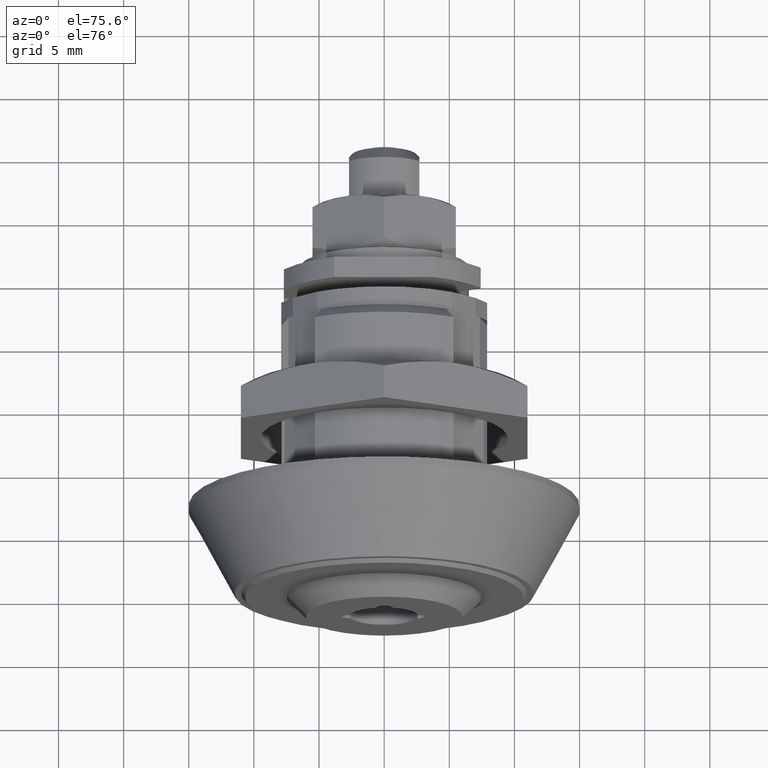
[diagram: clean part render]
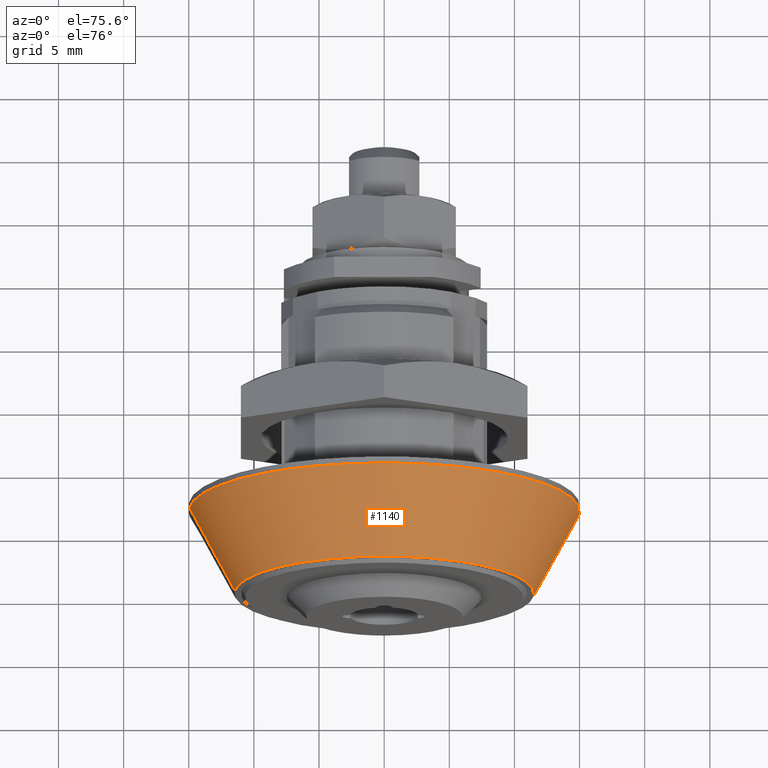
[diagram: same view with one face highlighted and labeled with its STEP entity id]
A machine part, auxiliary view. The second image highlights one B-rep face of the part: STEP entity #1140.
In plain terms, the highlighted face is a freeform B-spline surface patch.
Its self-contained STEP definition (entity closure, byte-faithful):
#929=CARTESIAN_POINT('',(8.300000000000100,-14.972022057790671,-0.915726761118138));
#930=VERTEX_POINT('',#929);
#936=CARTESIAN_POINT('',(8.300000000001246,-14.953760005997051,-1.176886435924669));
#937=VERTEX_POINT('',#936);
#938=CARTESIAN_POINT('',(8.300000000001246,-14.953760005997058,-1.176886435924669));
#939=CARTESIAN_POINT('',(8.300000000000004,-14.964030590679132,-1.046386284186825));
#940=CARTESIAN_POINT('',(8.300000000000100,-14.972022057790664,-0.915726761118138));
#948=(BOUNDED_CURVE()B_SPLINE_CURVE(2,(#938,#939,#940),.UNSPECIFIED.,.F.,.U.)B_SPLINE_CURVE_WITH_KNOTS((3,3),(0.736331300632608,0.739332977591658),.UNSPECIFIED.)CURVE()GEOMETRIC_REPRESENTATION_ITEM()RATIONAL_B_SPLINE_CURVE((0.969723356171484,0.972855491581995,0.976072074570510))REPRESENTATION_ITEM(''));
#949=EDGE_CURVE('',#937,#930,#948,.T.);
#989=CARTESIAN_POINT('',(8.300000000001244,14.953760005997051,1.176886435924667));
#990=VERTEX_POINT('',#989);
#1006=CARTESIAN_POINT('',(8.300000000000001,0.0,15.0));
#1007=VERTEX_POINT('',#1006);
#1008=CARTESIAN_POINT('',(8.300000000000001,0.0,15.0));
#1009=CARTESIAN_POINT('',(8.300000000000003,13.865857374860207,15.000000000000007));
#1010=CARTESIAN_POINT('',(8.300000000001244,14.953760005997056,1.176886435924667));
#1018=(BOUNDED_CURVE()B_SPLINE_CURVE(2,(#1008,#1009,#1010),.UNSPECIFIED.,.F.,.U.)B_SPLINE_CURVE_WITH_KNOTS((3,3),(0.0,0.236331300632608),.UNSPECIFIED.)CURVE()GEOMETRIC_REPRESENTATION_ITEM()RATIONAL_B_SPLINE_CURVE((1.0,0.723120658605383,0.969723356171484))REPRESENTATION_ITEM(''));
#1019=EDGE_CURVE('',#1007,#990,#1018,.T.);
#1021=CARTESIAN_POINT('',(8.300000000000100,-14.972022057790664,-0.915726761118138));
#1022=CARTESIAN_POINT('',(8.300000000000001,-14.999999999999998,-0.458290781659214));
#1023=CARTESIAN_POINT('',(8.300000000000001,-15.0,0.0));
#1024=CARTESIAN_POINT('',(8.300000000000001,-14.999999999999996,14.999999999999996));
#1025=CARTESIAN_POINT('',(8.300000000000001,0.0,15.0));
#1033=(BOUNDED_CURVE()B_SPLINE_CURVE(2,(#1021,#1022,#1023,#1024,#1025),.UNSPECIFIED.,.F.,.U.)B_SPLINE_CURVE_WITH_KNOTS((3,2,3),(0.739332977591658,0.750000000000000,1.0),.UNSPECIFIED.)CURVE()GEOMETRIC_REPRESENTATION_ITEM()RATIONAL_B_SPLINE_CURVE((0.976072074570510,0.987502805886662,1.0,0.707106781186547,1.0))REPRESENTATION_ITEM(''));
#1034=EDGE_CURVE('',#930,#1007,#1033,.T.);
#1073=CARTESIAN_POINT('',(1.637500000000000,11.377319071229319,0.895414429994037));
#1074=CARTESIAN_POINT('',(1.637500000000000,10.481904641235282,12.272733501223358));
#1075=CARTESIAN_POINT('',(1.637500000000000,-0.895414429994037,11.377319071229319));
#1076=CARTESIAN_POINT('',(1.637500000000000,-12.272733501223358,10.481904641235282));
#1077=CARTESIAN_POINT('',(1.637500000000000,-11.377319071229319,-0.895414429994037));
#1078=CARTESIAN_POINT('',(8.466562500000002,15.043171029366130,1.183923236065776));
#1079=CARTESIAN_POINT('',(8.466562500000002,13.859247793300352,16.227094265431905));
#1080=CARTESIAN_POINT('',(8.466562500000002,-1.183923236065776,15.043171029366130));
#1081=CARTESIAN_POINT('',(8.466562500000002,-16.227094265431905,13.859247793300352));
#1082=CARTESIAN_POINT('',(8.466562500000002,-15.043171029366130,-1.183923236065776));
#1090=(BOUNDED_SURFACE()B_SPLINE_SURFACE(2,1,((#1073,#1078),(#1074,#1079),(#1075,#1080),(#1076,#1081),(#1077,#1082)),.UNSPECIFIED.,.F.,.F.,.U.)B_SPLINE_SURFACE_WITH_KNOTS((3,2,3),(2,2),(0.0,25.001412857887079,50.002825715774172),(0.0,7.756146113828871),.UNSPECIFIED.)GEOMETRIC_REPRESENTATION_ITEM()RATIONAL_B_SPLINE_SURFACE(((1.0,1.0),(0.707106781186548,0.707106781186548),(1.0,1.0),(0.707106781186548,0.707106781186548),(1.0,1.0)))REPRESENTATION_ITEM('')SURFACE());
#1091=CARTESIAN_POINT('',(1.800000000000000,0.0,11.500000000000000));
#1092=VERTEX_POINT('',#1091);
#1093=CARTESIAN_POINT('',(1.799995854685223,11.464547399393579,0.902275783184057));
#1094=VERTEX_POINT('',#1093);
#1095=CARTESIAN_POINT('',(1.800000000000000,0.0,11.500000000000000));
#1096=CARTESIAN_POINT('',(1.799997927342612,10.630492929466369,11.499999912436346));
#1097=CARTESIAN_POINT('',(1.799995854685224,11.464547399393576,0.902275783184057));
#1105=(BOUNDED_CURVE()B_SPLINE_CURVE(2,(#1095,#1096,#1097),.UNSPECIFIED.,.F.,.U.)B_SPLINE_CURVE_WITH_KNOTS((3,3),(0.0,0.236331355098390),.UNSPECIFIED.)CURVE()GEOMETRIC_REPRESENTATION_ITEM()RATIONAL_B_SPLINE_CURVE((1.0,0.723120594794750,0.969723469837444))REPRESENTATION_ITEM(''));
#1106=EDGE_CURVE('',#1092,#1094,#1105,.T.);
#1107=ORIENTED_EDGE('',*,*,#1106,.F.);
#1108=CARTESIAN_POINT('',(1.799995854685223,-11.464547399393579,-0.902275783184057));
#1109=VERTEX_POINT('',#1108);
#1110=CARTESIAN_POINT('',(1.799995854685222,-11.464547399393574,-0.902275783184057));
#1111=CARTESIAN_POINT('',(1.799995929962617,-11.499997815196634,-0.451834228909769));
#1112=CARTESIAN_POINT('',(1.799996011397218,-11.499997858910870,0.000000168506682));
#1113=CARTESIAN_POINT('',(1.799998084054607,-11.499998971517075,11.500000080943030));
#1114=CARTESIAN_POINT('',(1.800000000000000,0.0,11.500000000000000));
#1122=(BOUNDED_CURVE()B_SPLINE_CURVE(2,(#1110,#1111,#1112,#1113,#1114),.UNSPECIFIED.,.F.,.U.)B_SPLINE_CURVE_WITH_KNOTS((3,2,3),(0.736331355098390,0.750000000000000,1.0),.UNSPECIFIED.)CURVE()GEOMETRIC_REPRESENTATION_ITEM()RATIONAL_B_SPLINE_CURVE((0.969723469837444,0.983986186391798,1.0,0.707106781186548,1.0))REPRESENTATION_ITEM(''));
#1123=EDGE_CURVE('',#1109,#1092,#1122,.T.);
#1124=ORIENTED_EDGE('',*,*,#1123,.F.);
#1125=CARTESIAN_POINT('',(1.799995854685223,-11.464547399393579,-0.902275783184057));
#1126=CARTESIAN_POINT('',(8.300000000001246,-14.953760005997051,-1.176886435924669));
#1127=QUASI_UNIFORM_CURVE('',1,(#1125,#1126),.UNSPECIFIED.,.F.,.U.);
#1128=EDGE_CURVE('',#1109,#937,#1127,.T.);
#1129=ORIENTED_EDGE('',*,*,#1128,.T.);
#1130=ORIENTED_EDGE('',*,*,#949,.T.);
#1131=ORIENTED_EDGE('',*,*,#1034,.T.);
#1132=ORIENTED_EDGE('',*,*,#1019,.T.);
#1133=CARTESIAN_POINT('',(1.799995854685223,11.464547399393579,0.902275783184057));
#1134=CARTESIAN_POINT('',(8.300000000001244,14.953760005997051,1.176886435924667));
#1135=QUASI_UNIFORM_CURVE('',1,(#1133,#1134),.UNSPECIFIED.,.F.,.U.);
#1136=EDGE_CURVE('',#1094,#990,#1135,.T.);
#1137=ORIENTED_EDGE('',*,*,#1136,.F.);
#1138=EDGE_LOOP('',(#1107,#1124,#1129,#1130,#1131,#1132,#1137));
#1139=FACE_OUTER_BOUND('',#1138,.T.);
#1140=ADVANCED_FACE('',(#1139),#1090,.T.);